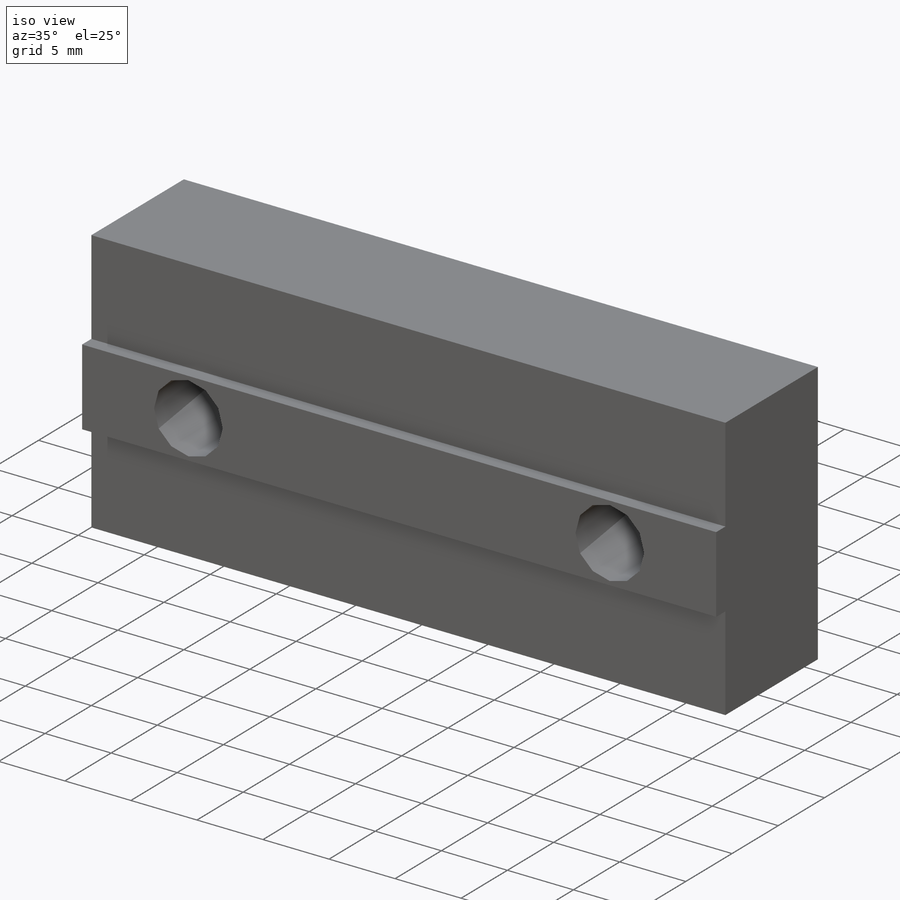
[diagram: iso view]
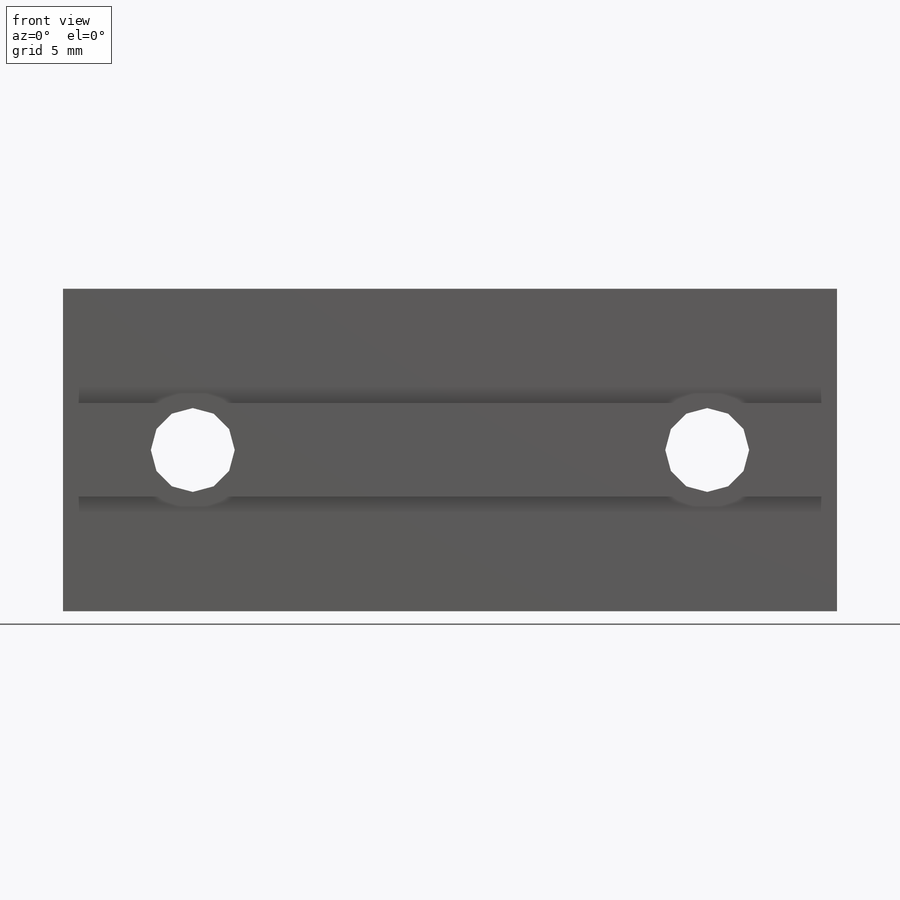
[diagram: front view]
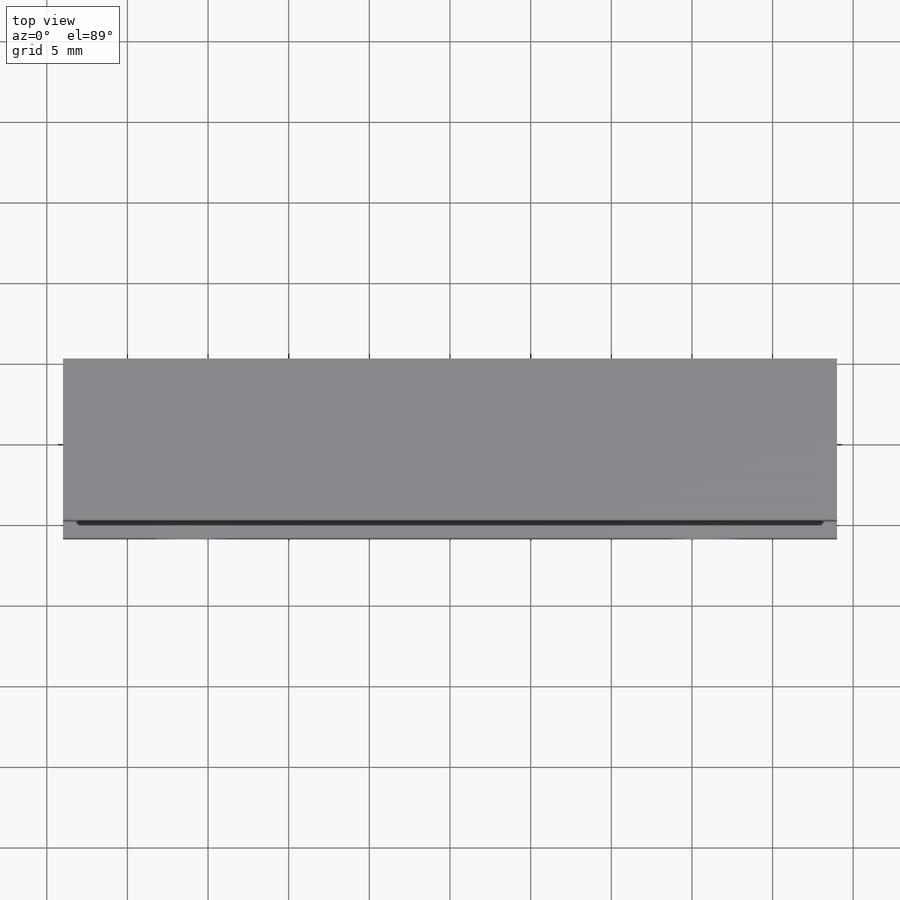
[diagram: top view]
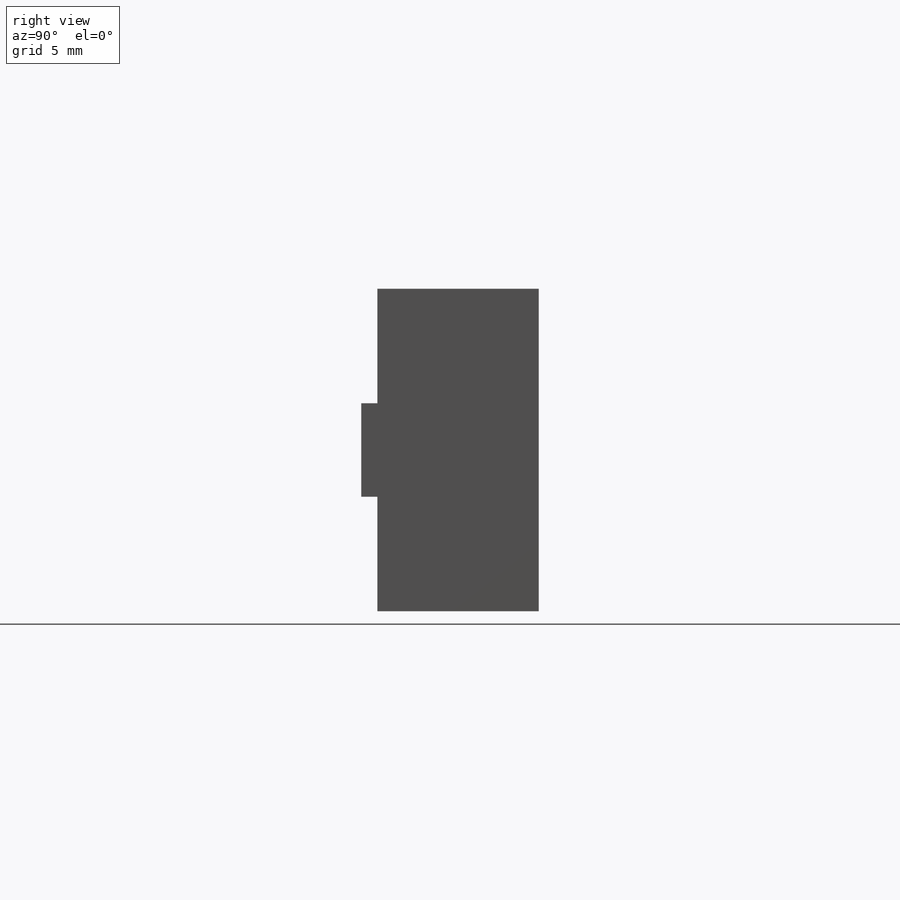
[diagram: right view]
SOLIDWORKS PART (.sldprt)
format: sldprt  version: not decoded by parser v0  size: 170,496 bytes
history: native  units: mm
features: sketch x3, extrude x2, material x1, cut_extrude x1, mirror x1 (+11 scaffold rows collapsed)
feature tree (19):
  scaffold x11  (default folders/planes/origin — collapsed)
  material  "Material <not specified>"
  sketch  "Sketch1"  dims[D1=20.0mm D2=48.0mm]
  extrude  "Boss-Extrude1"  Depth=10mm
  sketch  "Sketch4"  dims[D1=5.8mm]
  extrude  "Boss-Extrude2"  Depth=1mm
  sketch  "Sketch2"  dims[D1=5.2mm D2=15.95mm]
  cut_extrude  "Cut-Extrude1"  [1 undecoded]
  mirror  "Mirror1"
decode coverage: 5 of 7 modeling features carry decoded parameters
note: 1 parameter value undecoded
note: suppression state not decoded; provenance and decode notes live in map.json
